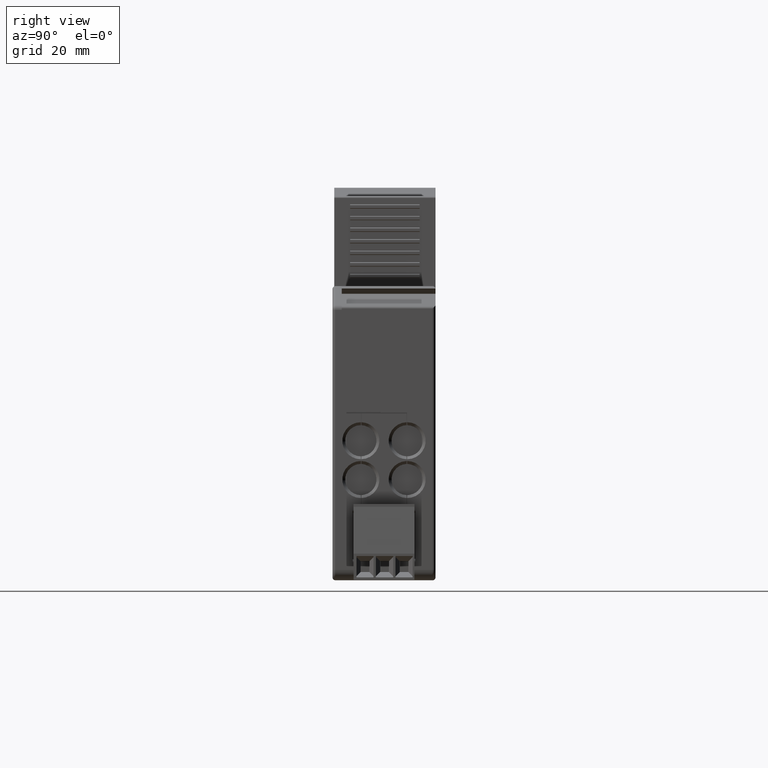
[diagram: clean part render]
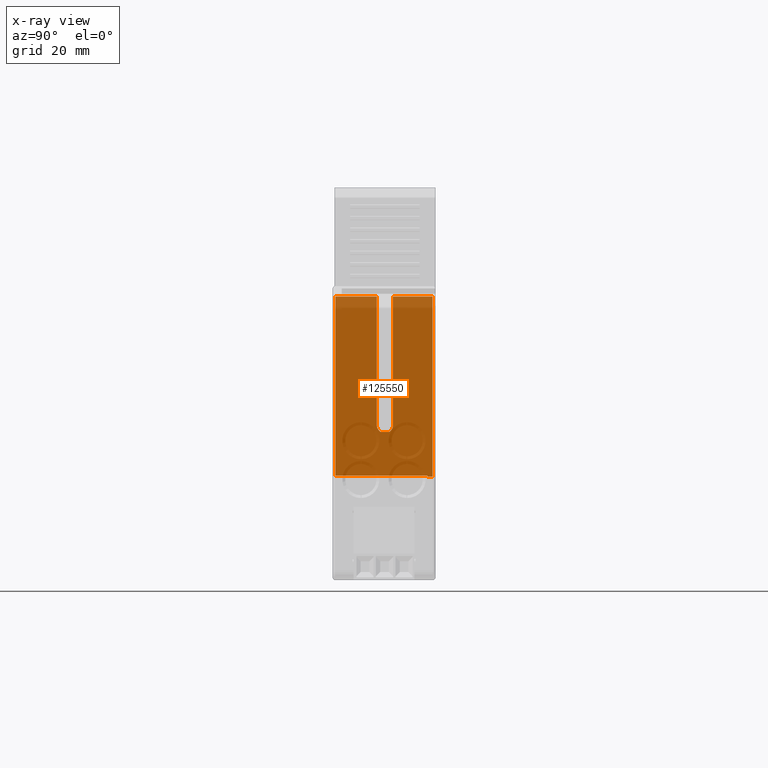
[diagram: x-ray — body ghosted, one internal face saturated and labeled with its STEP entity id]
A machine part, right view, then the same camera in x-ray: the body is ghosted and one INTERNAL B-rep face — a face not visible from any outside direction — is saturated and labeled: STEP entity #125550.
In plain terms, the highlighted planar face has unit normal (1, 0, 0).
Its self-contained STEP definition (entity closure, byte-faithful):
#40270=CARTESIAN_POINT('',(-194.407462,944.211242401068,26.0128696049982
));
#40280=VERTEX_POINT('',#40270);
#40330=CARTESIAN_POINT('',(-194.407462,944.211242401068,3.7283145462322)
);
#40340=DIRECTION('',(0.,0.,1.));
#40350=VECTOR('',#40340,1.);
#40360=LINE('',#40330,#40350);
#40370=CARTESIAN_POINT('',(-194.407462,944.211242401068,25.8128696049982
));
#40380=VERTEX_POINT('',#40370);
#40390=EDGE_CURVE('',#40380,#40280,#40360,.T.);
#61850=CARTESIAN_POINT('',(-194.407462,941.811242401068,56.9128690000014
));
#61860=DIRECTION('',(0.,1.,0.));
#61870=VECTOR('',#61860,1.);
#61880=LINE('',#61850,#61870);
#61890=CARTESIAN_POINT('',(-194.407461999999,938.261242401068,
56.9128690000014));
#61900=VERTEX_POINT('',#61890);
#61910=CARTESIAN_POINT('',(-194.407462,945.111242401068,56.9128690000014
));
#61920=VERTEX_POINT('',#61910);
#61930=EDGE_CURVE('',#61900,#61920,#61880,.T.);
#62170=CARTESIAN_POINT('',(-194.407461999999,935.461242401068,
56.9128690000014));
#62180=VERTEX_POINT('',#62170);
#62210=CARTESIAN_POINT('',(-194.407462,928.311242401068,56.9128690000014
));
#62220=VERTEX_POINT('',#62210);
#62230=EDGE_CURVE('',#62220,#62180,#61880,.T.);
#116820=CARTESIAN_POINT('',(-194.407462,945.111242401068,
25.8128696049982));
#116830=VERTEX_POINT('',#116820);
#116860=CARTESIAN_POINT('',(-194.407462,945.111242401068,3.7283145462322
));
#116870=DIRECTION('',(0.,-1.49975978266186E-32,1.));
#116880=VECTOR('',#116870,1.);
#116890=LINE('',#116860,#116880);
#116900=EDGE_CURVE('',#116830,#61920,#116890,.T.);
#124840=CARTESIAN_POINT('',(-194.407462,945.611242401068,56.912868999999
));
#124850=DIRECTION('',(1.,-0.,0.));
#124860=DIRECTION('',(0.,0.,-1.));
#124870=AXIS2_PLACEMENT_3D('',#124840,#124850,#124860);
#124880=PLANE('',#124870);
#124890=CARTESIAN_POINT('',(-194.407462,928.311242401068,3.7283145462322
));
#124900=DIRECTION('',(0.,0.,1.));
#124910=VECTOR('',#124900,1.);
#124920=LINE('',#124890,#124910);
#124930=CARTESIAN_POINT('',(-194.407462,928.311242401068,
26.0128696049982));
#124940=VERTEX_POINT('',#124930);
#124950=EDGE_CURVE('',#124940,#62220,#124920,.T.);
#124960=ORIENTED_EDGE('',*,*,#124950,.F.);
#124970=ORIENTED_EDGE('',*,*,#62230,.F.);
#124980=CARTESIAN_POINT('',(-194.407462,935.461242401068,3.7283145462322
));
#124990=DIRECTION('',(0.,0.,1.));
#125000=VECTOR('',#124990,1.);
#125010=LINE('',#124980,#125000);
#125020=CARTESIAN_POINT('',(-194.407462,935.461242401068,34.712869604998
));
#125030=VERTEX_POINT('',#125020);
#125040=EDGE_CURVE('',#125030,#62180,#125010,.T.);
#125050=ORIENTED_EDGE('',*,*,#125040,.T.);
#125060=CARTESIAN_POINT('',(-194.407462,936.861242401068,34.712869604998
));
#125070=DIRECTION('',(-1.,0.,0.));
#125080=DIRECTION('',(0.,-1.,0.));
#125090=AXIS2_PLACEMENT_3D('',#125060,#125070,#125080);
#125100=CIRCLE('',#125090,1.4);
#125110=CARTESIAN_POINT('',(-194.407462,936.140132145975,
33.5128696049981));
#125120=VERTEX_POINT('',#125110);
#125130=EDGE_CURVE('',#125120,#125030,#125100,.T.);
#125140=ORIENTED_EDGE('',*,*,#125130,.T.);
#125150=CARTESIAN_POINT('',(-194.407462,945.611242401068,
33.5128696049981));
#125160=DIRECTION('',(0.,1.,0.));
#125170=VECTOR('',#125160,1.);
#125180=LINE('',#125150,#125170);
#125190=CARTESIAN_POINT('',(-194.407462,937.58235265616,33.5128696049981
));
#125200=VERTEX_POINT('',#125190);
#125210=EDGE_CURVE('',#125120,#125200,#125180,.T.);
#125220=ORIENTED_EDGE('',*,*,#125210,.F.);
#125230=CARTESIAN_POINT('',(-194.407462,936.861242401068,34.712869604998
));
#125240=DIRECTION('',(-1.,0.,0.));
#125250=DIRECTION('',(0.,-1.,0.));
#125260=AXIS2_PLACEMENT_3D('',#125230,#125240,#125250);
#125270=CIRCLE('',#125260,1.4);
#125280=CARTESIAN_POINT('',(-194.407462,938.261242401068,34.712869604998
));
#125290=VERTEX_POINT('',#125280);
#125300=EDGE_CURVE('',#125290,#125200,#125270,.T.);
#125310=ORIENTED_EDGE('',*,*,#125300,.T.);
#125320=CARTESIAN_POINT('',(-194.407462,938.261242401068,3.7283145462322
));
#125330=DIRECTION('',(0.,0.,-1.));
#125340=VECTOR('',#125330,1.);
#125350=LINE('',#125320,#125340);
#125360=EDGE_CURVE('',#61900,#125290,#125350,.T.);
#125370=ORIENTED_EDGE('',*,*,#125360,.T.);
#125380=ORIENTED_EDGE('',*,*,#61930,.F.);
#125390=ORIENTED_EDGE('',*,*,#116900,.T.);
#125400=CARTESIAN_POINT('',(-194.407462,945.611242401068,
25.8128696049982));
#125410=DIRECTION('',(0.,-1.,0.));
#125420=VECTOR('',#125410,1.);
#125430=LINE('',#125400,#125420);
#125440=EDGE_CURVE('',#116830,#40380,#125430,.T.);
#125450=ORIENTED_EDGE('',*,*,#125440,.F.);
#125460=ORIENTED_EDGE('',*,*,#40390,.F.);
#125470=CARTESIAN_POINT('',(-194.407462,945.611242401068,
26.0128696049982));
#125480=DIRECTION('',(0.,-1.,0.));
#125490=VECTOR('',#125480,1.);
#125500=LINE('',#125470,#125490);
#125510=EDGE_CURVE('',#40280,#124940,#125500,.T.);
#125520=ORIENTED_EDGE('',*,*,#125510,.F.);
#125530=EDGE_LOOP('',(#125520,#125460,#125450,#125390,#125380,#125370,
#125310,#125220,#125140,#125050,#124970,#124960));
#125540=FACE_OUTER_BOUND('',#125530,.T.);
#125550=ADVANCED_FACE('',(#125540),#124880,.T.);